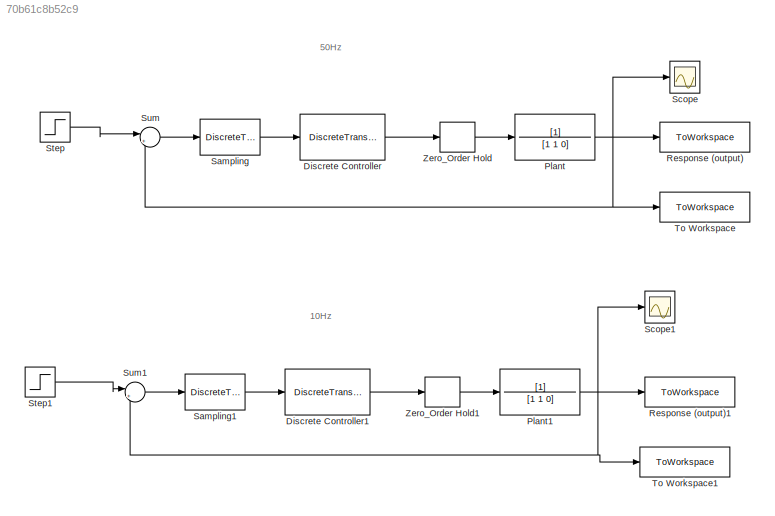
MODEL slx_70b61c8b52c9
KIND model
CONFIG AbsTol = auto
CONFIG EnableMultiTasking = off
CONFIG FixedStep = auto
CONFIG MaxStep = auto
CONFIG MinStep = auto
CONFIG RelTol = 1e-3
CONFIG SampleTimeConstraint = Unconstrained
CONFIG SolverName = VariableStepAuto
CONFIG StartTime = 0.0
CONFIG StopTime = 10
BLOCK [DiscreteTransferFcn] Discrete Controller
  Denominator = [1 0.6]
  InputPortMap = u0
  Numerator = [500 -460]
  Ports = [1, 1]
  SampleTime = 0.02
BLOCK [DiscreteTransferFcn] Discrete Controller1
  Denominator = [1 7]
  InputPortMap = u0
  Numerator = [500 -300]
  Ports = [1, 1]
  SampleTime = 0.1
BLOCK [TransferFcn] Plant
  Denominator = [1 1 0]
BLOCK [TransferFcn] Plant1
  Denominator = [1 1 0]
BLOCK [ToWorkspace] Response (output)
  FixptAsFi = on
  MaxDataPoints = inf
  Ports = [1]
  SampleTime = 0.02
  SaveFormat = Timeseries
  VariableName = y_digital_50
BLOCK [ToWorkspace] Response (output)1
  FixptAsFi = on
  MaxDataPoints = inf
  Ports = [1]
  SampleTime = 0.1
  SaveFormat = Timeseries
  VariableName = y_digital_10
BLOCK [DiscreteTransferFcn] Sampling
  Denominator = [1]
  InputPortMap = u0
  Ports = [1, 1]
  SampleTime = 0.02
BLOCK [DiscreteTransferFcn] Sampling1
  Denominator = [1]
  InputPortMap = u0
  Ports = [1, 1]
  SampleTime = 0.1
BLOCK [Scope] Scope
  Floating = off
  NumInputPorts = 1
  Ports = [1]
  ScopeSpecificationString = Simulink.scopes.TimeScopeBlockCfg('CurrentConfiguration', extmgr.ConfigurationSet(extmgr.Configuration('Core','General UI',true),extmgr.Configuration('Core','Source UI',true),extmgr.Configuration('Sources','WiredSimulink',true),extmgr.Configuration('Visuals','Time Domain',true,'SerializedDisplays',{struct('MinYLimReal','-43754015154778473589019089797478462383088510104703022564185201489111130361036...<+2006ch>
BLOCK [Scope] Scope1
  Floating = off
  NumInputPorts = 1
  Ports = [1]
  ScopeSpecificationString = Simulink.scopes.TimeScopeBlockCfg('CurrentConfiguration', extmgr.ConfigurationSet(extmgr.Configuration('Core','General UI',true),extmgr.Configuration('Core','Source UI',true),extmgr.Configuration('Sources','WiredSimulink',true,'DataLoggingVariableName','ScopeData1'),extmgr.Configuration('Visuals','Time Domain',true,'SerializedDisplays',{struct('MinYLimReal','-43754015154778473589019089797478462383...<+2046ch>
BLOCK [Step] Step
  SampleTime = 0
  Time = 0
BLOCK [Step] Step1
  SampleTime = 0
  Time = 0
BLOCK [Sum] Sum
  Inputs = |+-
  Ports = [2, 1]
BLOCK [Sum] Sum1
  Inputs = |+-
  Ports = [2, 1]
BLOCK [ToWorkspace] To Workspace
  FixptAsFi = on
  MaxDataPoints = inf
  Ports = [1]
  SampleTime = -1
  SaveFormat = Timeseries
  VariableName = y_cont_50
BLOCK [ToWorkspace] To Workspace1
  FixptAsFi = on
  MaxDataPoints = inf
  Ports = [1]
  SampleTime = -1
  SaveFormat = Timeseries
  VariableName = y_cont_10
BLOCK [ZeroOrderHold] Zero_Order Hold
  SampleTime = 0.02
BLOCK [ZeroOrderHold] Zero_Order Hold1
  SampleTime = 0.1
ANNOTATION (root): 10Hz
ANNOTATION (root): 50Hz
LINE Discrete Controller1:1 -> Zero_Order Hold1:1
LINE Discrete Controller:1 -> Zero_Order Hold:1
NET Plant1:1 -> Response (output)1:1, Scope1:1, Sum1:2, To Workspace1:1
NET Plant:1 -> Response (output):1, Scope:1, Sum:2, To Workspace:1
LINE Sampling1:1 -> Discrete Controller1:1
LINE Sampling:1 -> Discrete Controller:1
LINE Step1:1 -> Sum1:1
LINE Step:1 -> Sum:1
LINE Sum1:1 -> Sampling1:1
LINE Sum:1 -> Sampling:1
LINE Zero_Order Hold1:1 -> Plant1:1
LINE Zero_Order Hold:1 -> Plant:1
note: NET lines group one-source signal fan-out (src -> all destinations, sorted); 1:1 wires keep LINE
